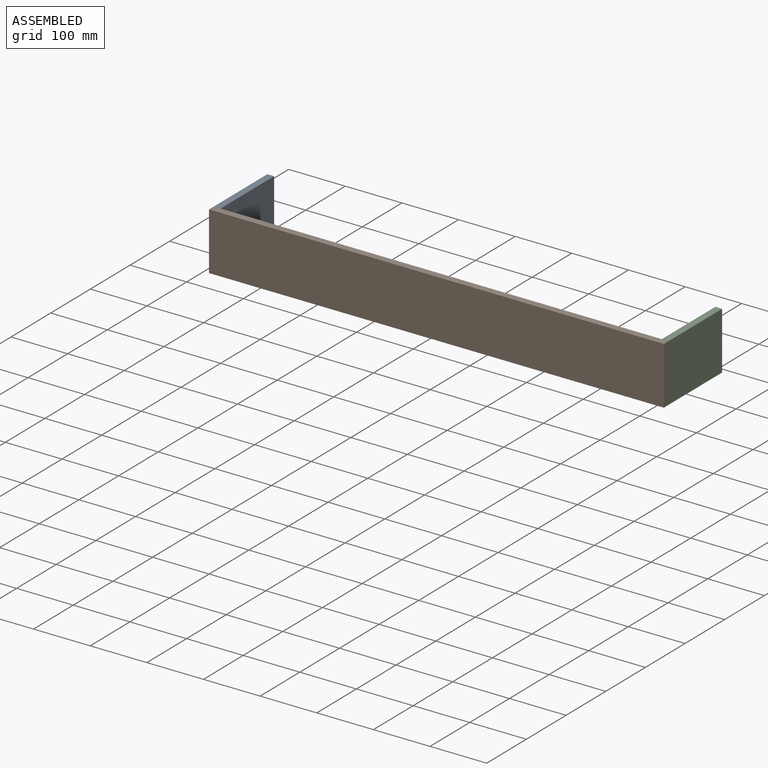
[diagram: assembled view]
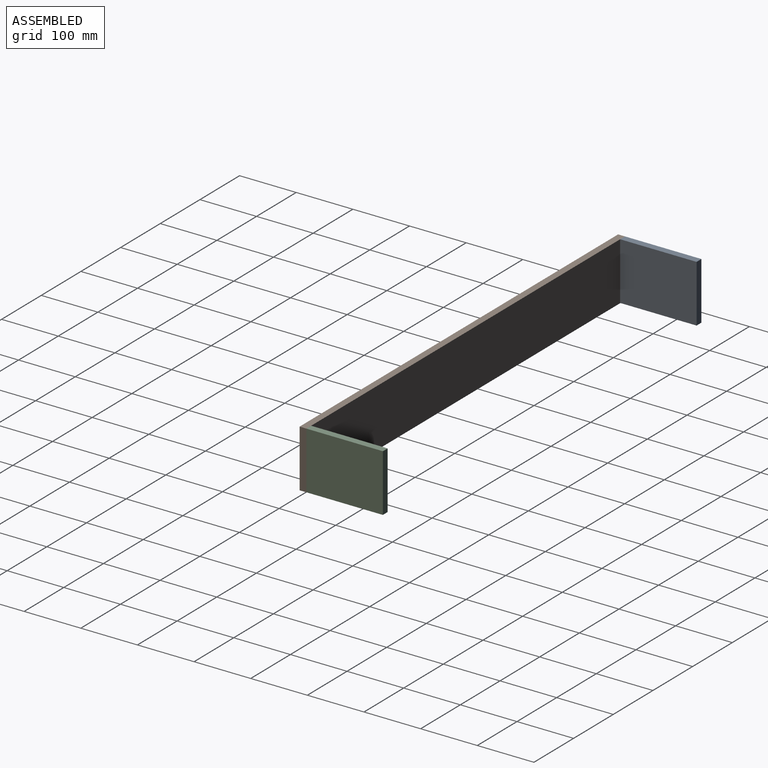
[diagram: assembled view, second angle]
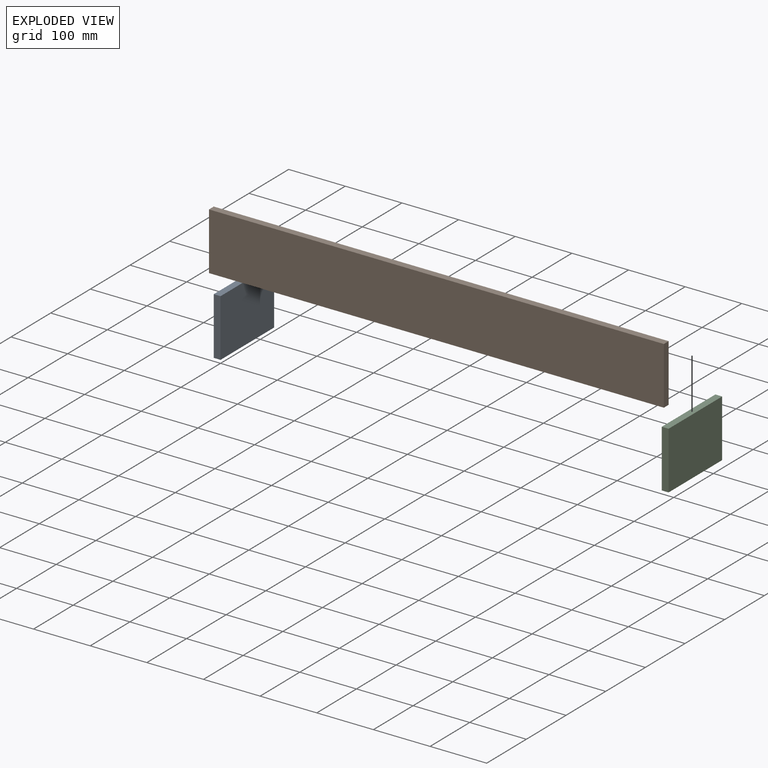
[diagram: exploded view]
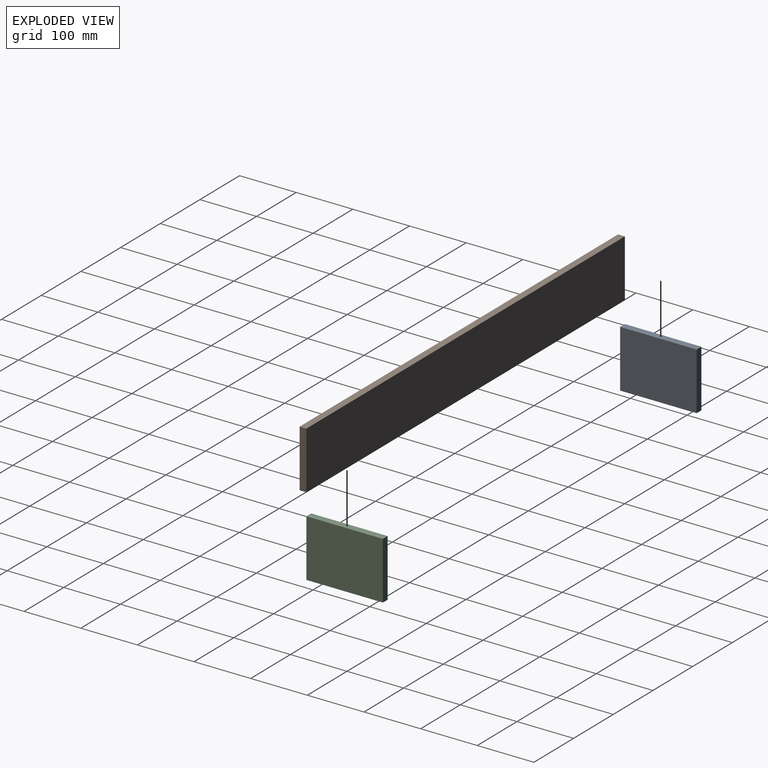
[diagram: exploded view, second angle]
ASSEMBLY  parts=3 mates=2
PART A: 6 faces, bbox 135x12x101.6 mm
  f0: plane 135x12mm, normal (0,0,1), area 1620mm2, adj f1,f3,f4,f5
  f1: plane 101.6x12mm, normal (-1,0,0), area 1219.2mm2, adj f0,f2,f4,f5
  f2: plane 135x12mm, normal (0,0,-1), area 1620mm2, adj f1,f3,f4,f5
  f3: plane 101.6x12mm, normal (1,0,0), area 1219.2mm2, adj f0,f2,f4,f5
  f4: plane 135x101.6mm, normal (0,-1,0), area 13716mm2, adj f0,f1,f2,f3
  f5: plane 135x101.6mm, normal (0,1,0), area 13716mm2, adj f0,f1,f2,f3
PART B: 6 faces, bbox 803x12x101.6 mm
  f0: plane 803x12mm, normal (0,0,1), area 9636mm2, adj f1,f3,f4,f5
  f1: plane 101.6x12mm, normal (-1,0,0), area 1219.2mm2, adj f0,f2,f4,f5
  f2: plane 803x12mm, normal (0,0,-1), area 9636mm2, adj f1,f3,f4,f5
  f3: plane 101.6x12mm, normal (1,0,0), area 1219.2mm2, adj f0,f2,f4,f5
  f4: plane 803x101.6mm, normal (0,-1,0), area 81584.8mm2, adj f0,f1,f2,f3
  f5: plane 803x101.6mm, normal (0,1,0), area 81584.8mm2, adj f0,f1,f2,f3
PART C: same geometry as A
PLACE A rot(axis=(0,0,-1),90deg) t=(-591.58,161.91,29.67)mm
PLACE B t=(96.6,87.91,229.17)mm
PLACE C rot(axis=(0,0,-1),90deg) t=(199.42,161.91,29.67)mm
MATE fastened A.f0 <-> B.f0  axis (0,0,-1) through (-603.58,87.91,248.91)mm
MATE fastened C.f2 <-> B.f2  axis (0,0,-1) through (199.42,87.91,147.31)mm
